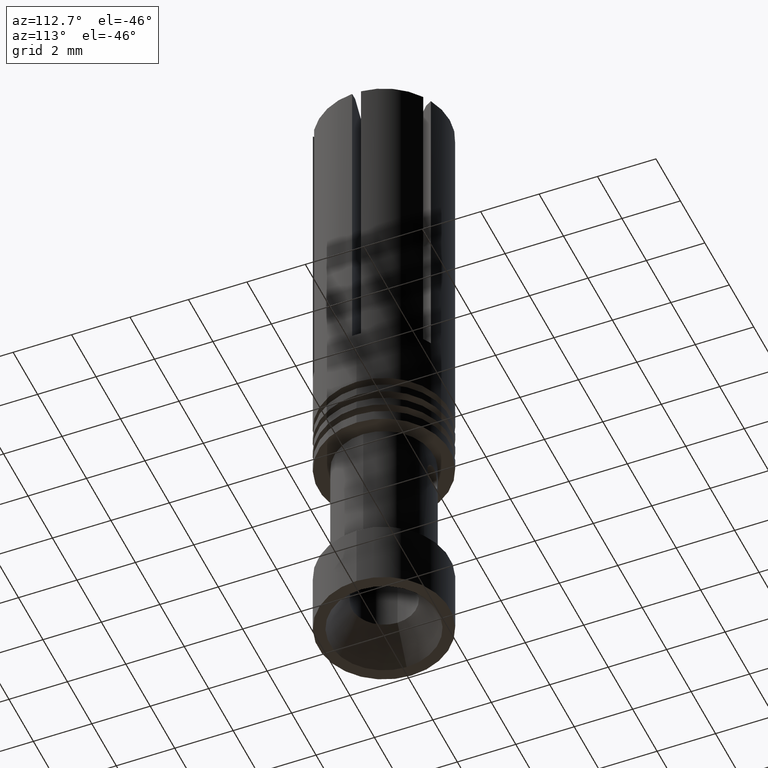
[diagram: clean part render]
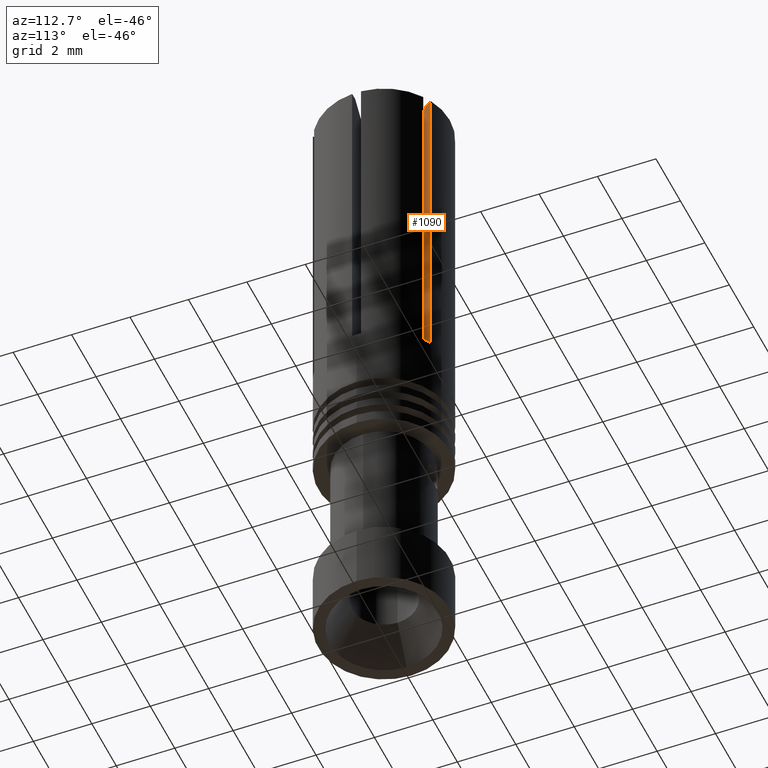
[diagram: same view with one face highlighted and labeled with its STEP entity id]
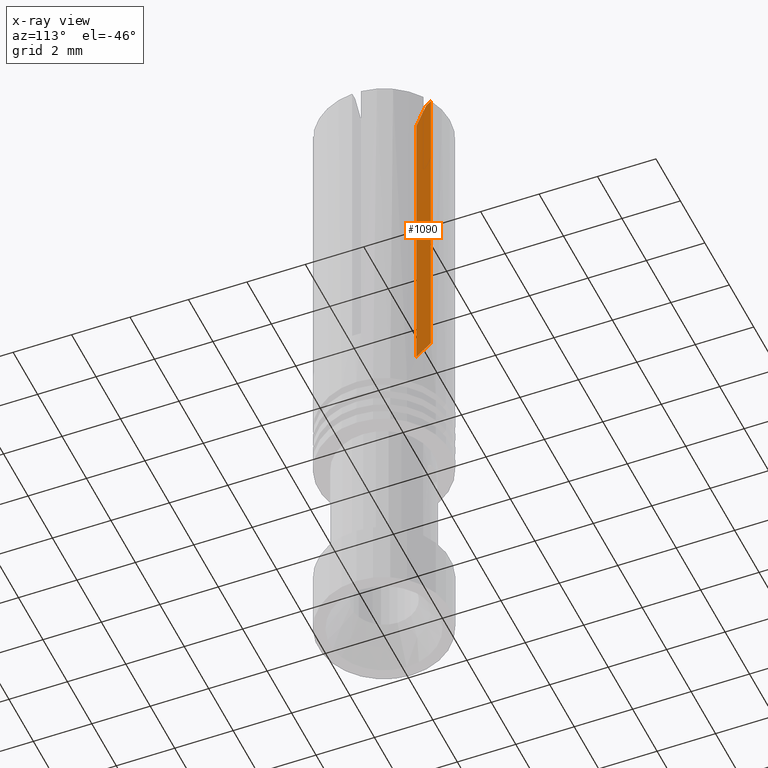
[diagram: x-ray of the same camera — body ghosted, the highlighted face saturated]
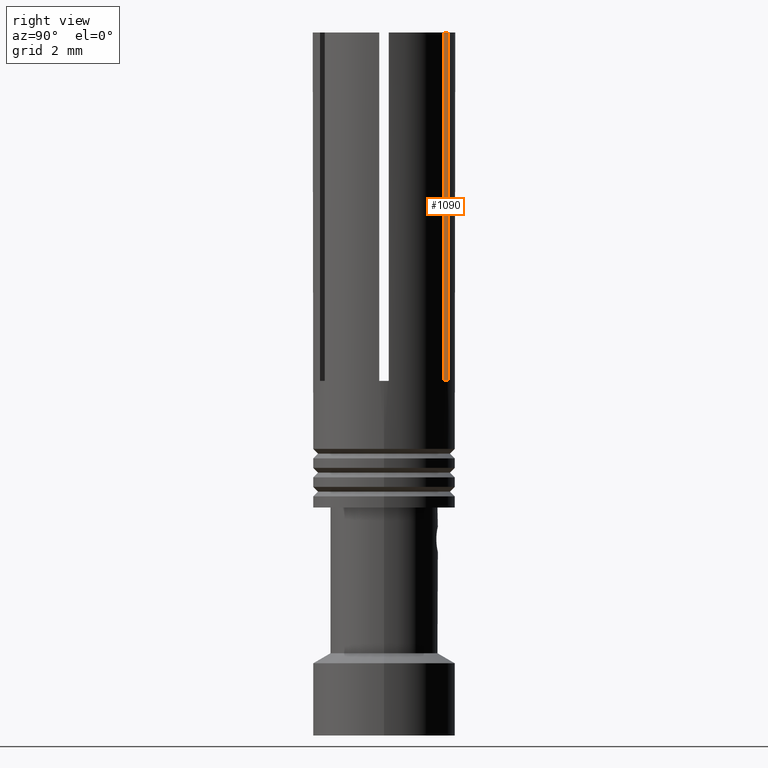
[diagram: same view with one face highlighted and labeled with its STEP entity id]
A machine part, auxiliary view. The second image highlights one B-rep face of the part: STEP entity #1090.
The next image is the same camera in x-ray: the body ghosted, the highlighted face saturated — about 0% of this face is hidden behind the body in this view.
A second angle (right view) of the same face is appended — the face is thin or edge-on in the first view.
In plain terms, the highlighted planar face has unit normal (-0.866, 0.5, 0).
Its self-contained STEP definition (entity closure, byte-faithful):
#47 = EDGE_CURVE ( 'NONE', #1659, #737, #298, .T. ) ;
#54 = CARTESIAN_POINT ( 'NONE',  ( -1.254903810567669975, -1.873557158514990162, 349.0000000000000000 ) ) ;
#154 = VECTOR ( 'NONE', #394, 1000.000000000000000 ) ;
#167 = LINE ( 'NONE', #1412, #154 ) ;
#196 = ORIENTED_EDGE ( 'NONE', *, *, #1363, .T. ) ;
#219 = VERTEX_POINT ( 'NONE', #702 ) ;
#234 = ORIENTED_EDGE ( 'NONE', *, *, #47, .F. ) ;
#251 = ORIENTED_EDGE ( 'NONE', *, *, #642, .T. ) ;
#298 = LINE ( 'NONE', #2039, #467 ) ;
#360 = CARTESIAN_POINT ( 'NONE',  ( 0.9925934054645180193, 2.019222209522359535, 349.0000000000000000 ) ) ;
#394 = DIRECTION ( 'NONE',  ( 0.4999999999999998890, 0.8660254037844387076, 0.000000000000000000 ) ) ;
#445 = CARTESIAN_POINT ( 'NONE',  ( 0.8672797231912909854, 1.802172544941589960, 360.0000000000000000 ) ) ;
#460 = CARTESIAN_POINT ( 'NONE',  ( 0.6163367672622999116, 1.367526595471060036, 359.5000000000000000 ) ) ;
#467 = VECTOR ( 'NONE', #998, 1000.000000000000000 ) ;
#490 = CARTESIAN_POINT ( 'NONE',  ( 0.7000369204342260510, 1.512499513366130088, 359.6665612017799845 ) ) ;
#512 = EDGE_LOOP ( 'NONE', ( #251, #1552, #1315, #234, #196 ) ) ;
#642 = EDGE_CURVE ( 'NONE', #1019, #219, #1247, .T. ) ;
#702 = CARTESIAN_POINT ( 'NONE',  ( 0.9925934054645180193, 2.019222209522359535, 360.0000000000000000 ) ) ;
#707 = DIRECTION ( 'NONE',  ( -0.8660254037844387076, 0.4999999999999998890, 0.000000000000000000 ) ) ;
#718 = EDGE_CURVE ( 'NONE', #850, #219, #167, .T. ) ;
#737 = VERTEX_POINT ( 'NONE', #740 ) ;
#740 = CARTESIAN_POINT ( 'NONE',  ( 0.6163367672622999116, 1.367526595471060036, 359.5000000000000000 ) ) ;
#820 = VECTOR ( 'NONE', #1809, 1000.000000000000000 ) ;
#850 = VERTEX_POINT ( 'NONE', #984 ) ;
#858 = B_SPLINE_CURVE_WITH_KNOTS ( 'NONE', 3,
 ( #445, #2040, #490, #460 ),
 .UNSPECIFIED., .F., .F.,
 ( 4, 4 ),
 ( 0.000000000000000000, 1.000000000000000000 ),
 .UNSPECIFIED. ) ;
#984 = CARTESIAN_POINT ( 'NONE',  ( 0.8672797231912909854, 1.802172544941589960, 360.0000000000000000 ) ) ;
#998 = DIRECTION ( 'NONE',  ( 0.000000000000000000, 0.000000000000000000, 1.000000000000000000 ) ) ;
#1019 = VERTEX_POINT ( 'NONE', #360 ) ;
#1073 = CARTESIAN_POINT ( 'NONE',  ( 0.9925934054645180193, 2.019222209522359535, 345.0000000000000000 ) ) ;
#1090 = ADVANCED_FACE ( 'NONE', ( #2077 ), #2100, .F. ) ;
#1235 = CARTESIAN_POINT ( 'NONE',  ( -1.254903810567669975, -1.873557158514990162, 360.0000000000000000 ) ) ;
#1247 = LINE ( 'NONE', #1073, #1321 ) ;
#1315 = ORIENTED_EDGE ( 'NONE', *, *, #2028, .T. ) ;
#1321 = VECTOR ( 'NONE', #1753, 1000.000000000000000 ) ;
#1363 = EDGE_CURVE ( 'NONE', #1659, #1019, #1611, .T. ) ;
#1412 = CARTESIAN_POINT ( 'NONE',  ( -1.254903810567669975, -1.873557158514990162, 360.0000000000000000 ) ) ;
#1552 = ORIENTED_EDGE ( 'NONE', *, *, #718, .F. ) ;
#1580 = AXIS2_PLACEMENT_3D ( 'NONE', #1235, #707, #1585 ) ;
#1585 = DIRECTION ( 'NONE',  ( 0.000000000000000000, 0.000000000000000000, 1.000000000000000000 ) ) ;
#1611 = LINE ( 'NONE', #54, #820 ) ;
#1659 = VERTEX_POINT ( 'NONE', #2107 ) ;
#1753 = DIRECTION ( 'NONE',  ( 0.000000000000000000, 0.000000000000000000, 1.000000000000000000 ) ) ;
#1809 = DIRECTION ( 'NONE',  ( 0.4999999999999998890, 0.8660254037844387076, 0.000000000000000000 ) ) ;
#2028 = EDGE_CURVE ( 'NONE', #850, #737, #858, .T. ) ;
#2039 = CARTESIAN_POINT ( 'NONE',  ( 0.6163367672622999116, 1.367526595471060036, 360.0000000000000000 ) ) ;
#2040 = CARTESIAN_POINT ( 'NONE',  ( 0.7836714256670430645, 1.657358725695250001, 359.8332543648459705 ) ) ;
#2077 = FACE_OUTER_BOUND ( 'NONE', #512, .T. ) ;
#2100 = PLANE ( 'NONE',  #1580 ) ;
#2107 = CARTESIAN_POINT ( 'NONE',  ( 0.6163367672622999116, 1.367526595471060036, 349.0000000000000000 ) ) ;